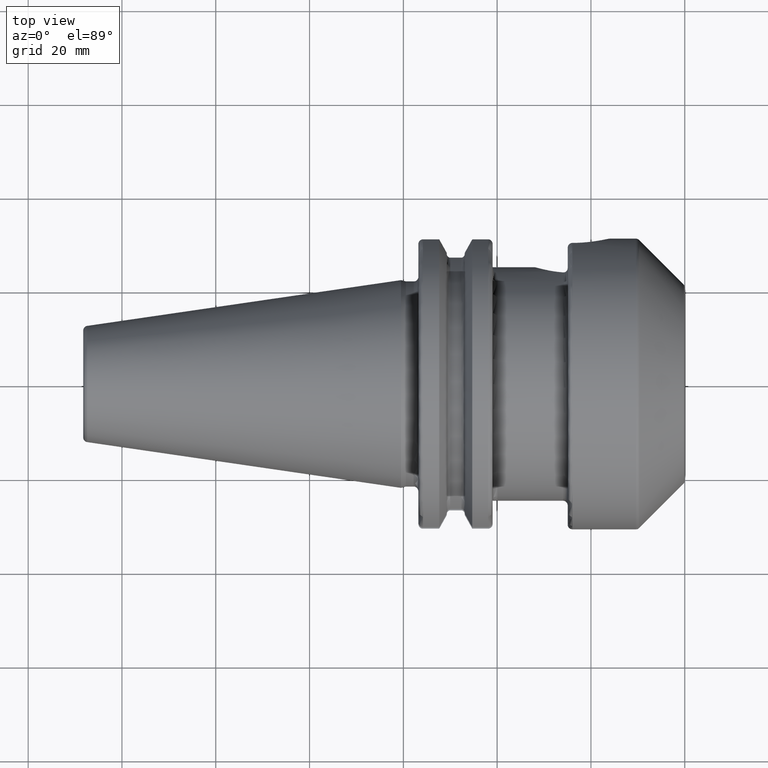
[diagram: clean part render]
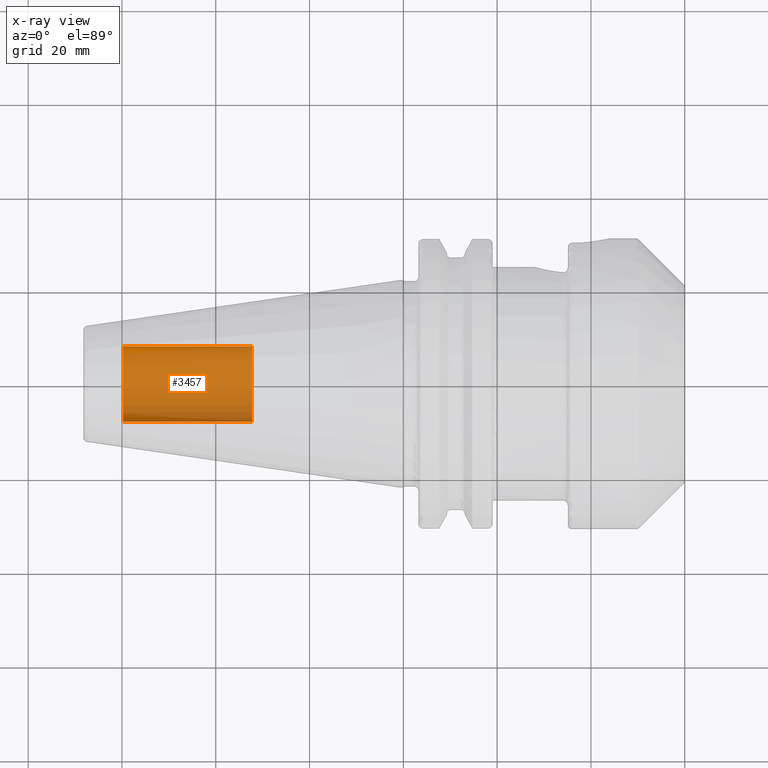
[diagram: x-ray — body ghosted, one internal face saturated and labeled with its STEP entity id]
A machine part, top view, then the same camera in x-ray: the body is ghosted and one INTERNAL B-rep face — a face not visible from any outside direction — is saturated and labeled: STEP entity #3457.
In plain terms, the highlighted cylindrical surface (partial cylindrical patch) has radius 8.0028 mm, axis along (1, 0, 0).
Its self-contained STEP definition (entity closure, byte-faithful):
#3392=CARTESIAN_POINT('',(-5.98E1,0.E0,0.E0));
#3393=DIRECTION('',(-1.E0,0.E0,0.E0));
#3394=DIRECTION('',(0.E0,1.E0,0.E0));
#3395=AXIS2_PLACEMENT_3D('',#3392,#3393,#3394);
#3397=DIRECTION('',(1.E0,0.E0,0.E0));
#3398=VECTOR('',#3397,2.755E1);
#3399=CARTESIAN_POINT('',(-5.98E1,-8.00275E0,0.E0));
#3400=LINE('',#3399,#3398);
#3406=DIRECTION('',(1.E0,0.E0,0.E0));
#3407=VECTOR('',#3406,2.755E1);
#3408=CARTESIAN_POINT('',(-5.98E1,8.00275E0,0.E0));
#3409=LINE('',#3408,#3407);
#3415=CARTESIAN_POINT('',(-3.225E1,0.E0,0.E0));
#3416=DIRECTION('',(1.E0,0.E0,0.E0));
#3417=DIRECTION('',(0.E0,-1.E0,0.E0));
#3418=AXIS2_PLACEMENT_3D('',#3415,#3416,#3417);
#3430=CARTESIAN_POINT('',(-5.98E1,8.00275E0,0.E0));
#3431=CARTESIAN_POINT('',(-5.98E1,-8.00275E0,0.E0));
#3432=VERTEX_POINT('',#3430);
#3433=VERTEX_POINT('',#3431);
#3434=CARTESIAN_POINT('',(-3.225E1,8.00275E0,0.E0));
#3435=CARTESIAN_POINT('',(-3.225E1,-8.00275E0,0.E0));
#3436=VERTEX_POINT('',#3434);
#3437=VERTEX_POINT('',#3435);
#3442=CARTESIAN_POINT('',(-5.98E1,0.E0,0.E0));
#3443=DIRECTION('',(1.E0,0.E0,0.E0));
#3444=DIRECTION('',(0.E0,1.E0,0.E0));
#3445=AXIS2_PLACEMENT_3D('',#3442,#3443,#3444);
#3446=CYLINDRICAL_SURFACE('',#3445,8.00275E0);
#3448=ORIENTED_EDGE('',*,*,#3447,.T.);
#3450=ORIENTED_EDGE('',*,*,#3449,.T.);
#3452=ORIENTED_EDGE('',*,*,#3451,.T.);
#3454=ORIENTED_EDGE('',*,*,#3453,.F.);
#3455=EDGE_LOOP('',(#3448,#3450,#3452,#3454));
#3456=FACE_OUTER_BOUND('',#3455,.F.);
#3457=ADVANCED_FACE('',(#3456),#3446,.T.);
#3396=CIRCLE('',#3395,8.00275E0);
#3419=CIRCLE('',#3418,8.00275E0);
#3447=EDGE_CURVE('',#3432,#3433,#3396,.T.);
#3449=EDGE_CURVE('',#3433,#3437,#3400,.T.);
#3451=EDGE_CURVE('',#3437,#3436,#3419,.T.);
#3453=EDGE_CURVE('',#3432,#3436,#3409,.T.);